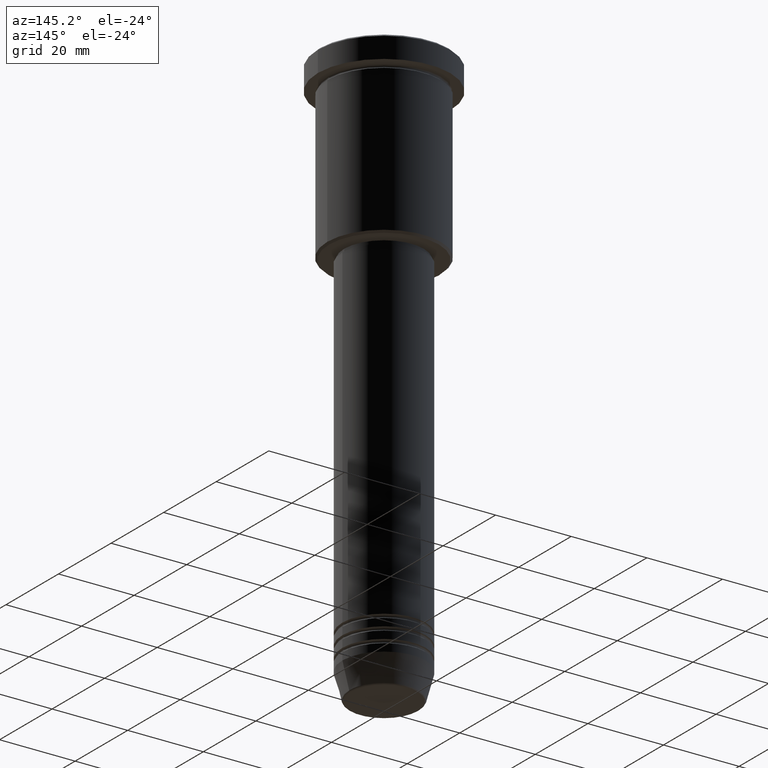
[diagram: clean part render]
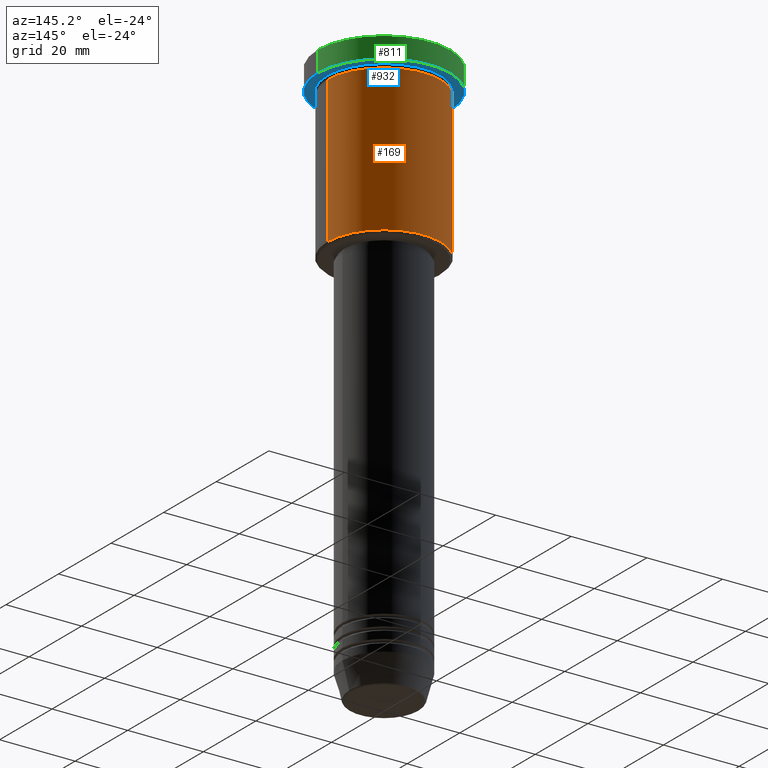
[diagram: same view with three faces highlighted in distinct colors, each labeled with its STEP entity id]
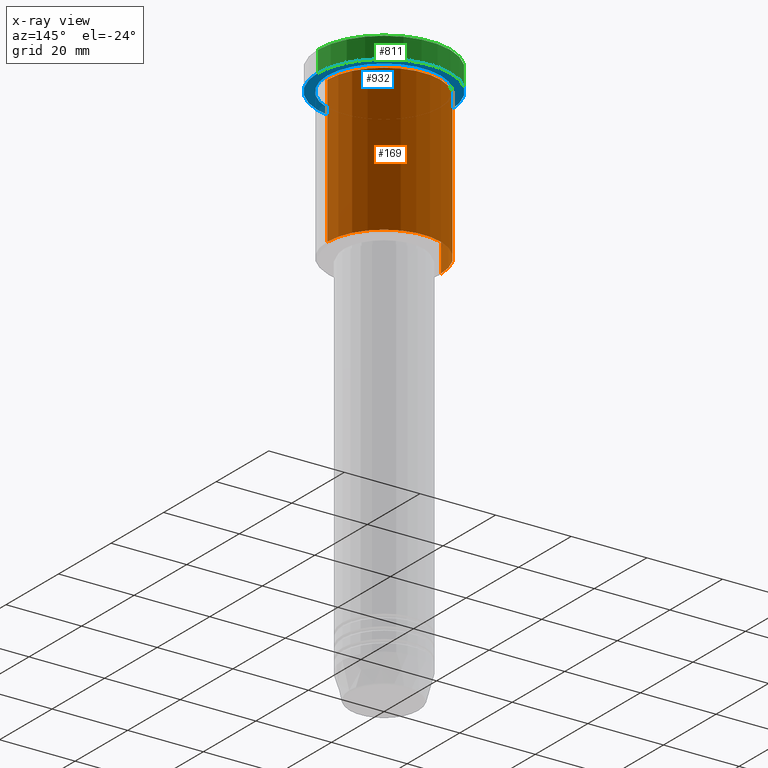
[diagram: x-ray of the same camera — body ghosted, the three highlighted faces saturated]
A machine part, auxiliary view with three faces highlighted in distinct colors.
The next image is the same camera in x-ray (body ghosted, the three faces saturated) — at least one of them is partly hidden behind the body in this view.
Their STEP definitions:

[orange] entity #169 — the highlighted cylindrical surface (partial cylindrical patch) has radius 15 mm, axis along (-0, -0, 1).
#1 = DIRECTION ( 'NONE',  ( 1.000000000000000000, 0.000000000000000000, 0.000000000000000000 ) ) ;
#10 = EDGE_CURVE ( 'NONE', #375, #354, #98, .T. ) ;
#68 = CARTESIAN_POINT ( 'NONE',  ( -15.00000000000000000, 1.836970198721029589E-15, -6.999999999999995559 ) ) ;
#73 = CARTESIAN_POINT ( 'NONE',  ( 15.00000000000000000, 0.000000000000000000, -6.999999999999995559 ) ) ;
#78 = DIRECTION ( 'NONE',  ( -0.000000000000000000, -0.000000000000000000, 1.000000000000000000 ) ) ;
#84 = CIRCLE ( 'NONE', #447, 15.00000000000000000 ) ;
#98 = LINE ( 'NONE', #114, #140 ) ;
#111 = ORIENTED_EDGE ( 'NONE', *, *, #1135, .F. ) ;
#114 = CARTESIAN_POINT ( 'NONE',  ( 15.00000000000000000, 0.000000000000000000, 0.000000000000000000 ) ) ;
#132 = ORIENTED_EDGE ( 'NONE', *, *, #397, .T. ) ;
#140 = VECTOR ( 'NONE', #484, 1000.000000000000000 ) ;
#147 = DIRECTION ( 'NONE',  ( -0.000000000000000000, -0.000000000000000000, 1.000000000000000000 ) ) ;
#169 = ADVANCED_FACE ( 'NONE', ( #378 ), #1075, .T. ) ;
#243 = ORIENTED_EDGE ( 'NONE', *, *, #10, .F. ) ;
#247 = AXIS2_PLACEMENT_3D ( 'NONE', #256, #78, #1 ) ;
#256 = CARTESIAN_POINT ( 'NONE',  ( 0.000000000000000000, 0.000000000000000000, 0.000000000000000000 ) ) ;
#320 = DIRECTION ( 'NONE',  ( -0.000000000000000000, -0.000000000000000000, 1.000000000000000000 ) ) ;
#342 = ORIENTED_EDGE ( 'NONE', *, *, #722, .T. ) ;
#354 = VERTEX_POINT ( 'NONE', #73 ) ;
#375 = VERTEX_POINT ( 'NONE', #398 ) ;
#378 = FACE_OUTER_BOUND ( 'NONE', #1041, .T. ) ;
#397 = EDGE_CURVE ( 'NONE', #1016, #558, #883, .T. ) ;
#398 = CARTESIAN_POINT ( 'NONE',  ( 15.00000000000000000, 0.000000000000000000, -45.49999999999998579 ) ) ;
#417 = CARTESIAN_POINT ( 'NONE',  ( -15.00000000000000000, 1.836970198721029589E-15, 0.000000000000000000 ) ) ;
#447 = AXIS2_PLACEMENT_3D ( 'NONE', #598, #147, #789 ) ;
#452 = DIRECTION ( 'NONE',  ( -1.000000000000000000, 0.000000000000000000, 0.000000000000000000 ) ) ;
#484 = DIRECTION ( 'NONE',  ( -0.000000000000000000, -0.000000000000000000, 1.000000000000000000 ) ) ;
#507 = CARTESIAN_POINT ( 'NONE',  ( -15.00000000000000000, 1.836970198721029589E-15, -45.49999999999998579 ) ) ;
#558 = VERTEX_POINT ( 'NONE', #68 ) ;
#567 = CIRCLE ( 'NONE', #978, 15.00000000000000000 ) ;
#598 = CARTESIAN_POINT ( 'NONE',  ( 0.000000000000000000, 0.000000000000000000, -6.999999999999995559 ) ) ;
#651 = DIRECTION ( 'NONE',  ( -0.000000000000000000, -0.000000000000000000, 1.000000000000000000 ) ) ;
#687 = CARTESIAN_POINT ( 'NONE',  ( 0.000000000000000000, 0.000000000000000000, -45.49999999999998579 ) ) ;
#722 = EDGE_CURVE ( 'NONE', #375, #1016, #567, .T. ) ;
#789 = DIRECTION ( 'NONE',  ( 1.000000000000000000, 0.000000000000000000, 0.000000000000000000 ) ) ;
#883 = LINE ( 'NONE', #417, #933 ) ;
#933 = VECTOR ( 'NONE', #320, 1000.000000000000000 ) ;
#978 = AXIS2_PLACEMENT_3D ( 'NONE', #687, #651, #452 ) ;
#1016 = VERTEX_POINT ( 'NONE', #507 ) ;
#1041 = EDGE_LOOP ( 'NONE', ( #342, #132, #111, #243 ) ) ;
#1075 = CYLINDRICAL_SURFACE ( 'NONE', #247, 15.00000000000000000 ) ;
#1135 = EDGE_CURVE ( 'NONE', #354, #558, #84, .T. ) ;

[blue] entity #932 — the highlighted planar face has unit normal (0, 0, -1).
#87 = EDGE_LOOP ( 'NONE', ( #574, #1058 ) ) ;
#102 = AXIS2_PLACEMENT_3D ( 'NONE', #964, #1046, #610 ) ;
#213 = EDGE_CURVE ( 'NONE', #1152, #482, #641, .T. ) ;
#217 = CARTESIAN_POINT ( 'NONE',  ( 0.000000000000000000, 0.000000000000000000, -5.999999999999995559 ) ) ;
#220 = ORIENTED_EDGE ( 'NONE', *, *, #917, .T. ) ;
#268 = CARTESIAN_POINT ( 'NONE',  ( -17.50000000000000000, 2.143131898507868248E-15, -5.999999999999995559 ) ) ;
#302 = PLANE ( 'NONE',  #877 ) ;
#376 = CARTESIAN_POINT ( 'NONE',  ( 0.000000000000000000, 0.000000000000000000, -5.999999999999995559 ) ) ;
#389 = CARTESIAN_POINT ( 'NONE',  ( 0.000000000000000000, 17.50000000000000000, -5.999999999999995559 ) ) ;
#411 = CIRCLE ( 'NONE', #1133, 17.50000000000000000 ) ;
#443 = CARTESIAN_POINT ( 'NONE',  ( 17.50000000000000000, 0.000000000000000000, -5.999999999999995559 ) ) ;
#471 = DIRECTION ( 'NONE',  ( -0.000000000000000000, -0.000000000000000000, 1.000000000000000000 ) ) ;
#481 = EDGE_CURVE ( 'NONE', #667, #617, #488, .T. ) ;
#482 = VERTEX_POINT ( 'NONE', #1148 ) ;
#488 = CIRCLE ( 'NONE', #102, 17.50000000000000000 ) ;
#545 = AXIS2_PLACEMENT_3D ( 'NONE', #376, #753, #930 ) ;
#552 = CARTESIAN_POINT ( 'NONE',  ( 0.000000000000000000, 0.000000000000000000, -5.999999999999995559 ) ) ;
#574 = ORIENTED_EDGE ( 'NONE', *, *, #671, .F. ) ;
#602 = AXIS2_PLACEMENT_3D ( 'NONE', #217, #672, #763 ) ;
#610 = DIRECTION ( 'NONE',  ( 1.000000000000000000, 0.000000000000000000, 0.000000000000000000 ) ) ;
#617 = VERTEX_POINT ( 'NONE', #443 ) ;
#631 = CARTESIAN_POINT ( 'NONE',  ( 15.00000000000000000, 1.836970198721029589E-15, -5.999999999999994671 ) ) ;
#641 = CIRCLE ( 'NONE', #602, 15.00000000000000000 ) ;
#667 = VERTEX_POINT ( 'NONE', #268 ) ;
#671 = EDGE_CURVE ( 'NONE', #617, #667, #411, .T. ) ;
#672 = DIRECTION ( 'NONE',  ( -0.000000000000000000, -0.000000000000000000, 1.000000000000000000 ) ) ;
#753 = DIRECTION ( 'NONE',  ( -0.000000000000000000, -0.000000000000000000, 1.000000000000000000 ) ) ;
#763 = DIRECTION ( 'NONE',  ( -1.000000000000000000, 0.000000000000000000, 0.000000000000000000 ) ) ;
#771 = FACE_BOUND ( 'NONE', #1174, .T. ) ;
#834 = DIRECTION ( 'NONE',  ( 1.000000000000000000, 0.000000000000000000, 0.000000000000000000 ) ) ;
#858 = FACE_OUTER_BOUND ( 'NONE', #87, .T. ) ;
#877 = AXIS2_PLACEMENT_3D ( 'NONE', #389, #1007, #941 ) ;
#917 = EDGE_CURVE ( 'NONE', #482, #1152, #1115, .T. ) ;
#930 = DIRECTION ( 'NONE',  ( -1.000000000000000000, 0.000000000000000000, 0.000000000000000000 ) ) ;
#932 = ADVANCED_FACE ( 'NONE', ( #771, #858 ), #302, .T. ) ;
#941 = DIRECTION ( 'NONE',  ( -1.000000000000000000, 0.000000000000000000, -0.000000000000000000 ) ) ;
#964 = CARTESIAN_POINT ( 'NONE',  ( 0.000000000000000000, 0.000000000000000000, -5.999999999999995559 ) ) ;
#989 = ORIENTED_EDGE ( 'NONE', *, *, #213, .T. ) ;
#1007 = DIRECTION ( 'NONE',  ( 0.000000000000000000, 0.000000000000000000, -1.000000000000000000 ) ) ;
#1046 = DIRECTION ( 'NONE',  ( -0.000000000000000000, -0.000000000000000000, 1.000000000000000000 ) ) ;
#1058 = ORIENTED_EDGE ( 'NONE', *, *, #481, .F. ) ;
#1115 = CIRCLE ( 'NONE', #545, 15.00000000000000000 ) ;
#1133 = AXIS2_PLACEMENT_3D ( 'NONE', #552, #471, #834 ) ;
#1148 = CARTESIAN_POINT ( 'NONE',  ( -15.00000000000000000, 0.000000000000000000, -5.999999999999994671 ) ) ;
#1152 = VERTEX_POINT ( 'NONE', #631 ) ;
#1174 = EDGE_LOOP ( 'NONE', ( #220, #989 ) ) ;

[green] entity #811 — the highlighted cylindrical surface (partial cylindrical patch) has radius 17.5 mm, axis along (-0, -0, 1).
#50 = VECTOR ( 'NONE', #439, 1000.000000000000000 ) ;
#104 = AXIS2_PLACEMENT_3D ( 'NONE', #705, #1178, #551 ) ;
#106 = EDGE_CURVE ( 'NONE', #617, #184, #281, .T. ) ;
#107 = CARTESIAN_POINT ( 'NONE',  ( 17.50000000000000000, 0.000000000000000000, 0.000000000000000000 ) ) ;
#184 = VERTEX_POINT ( 'NONE', #915 ) ;
#254 = LINE ( 'NONE', #450, #50 ) ;
#268 = CARTESIAN_POINT ( 'NONE',  ( -17.50000000000000000, 2.143131898507868248E-15, -5.999999999999995559 ) ) ;
#281 = LINE ( 'NONE', #107, #409 ) ;
#291 = AXIS2_PLACEMENT_3D ( 'NONE', #363, #704, #462 ) ;
#340 = ORIENTED_EDGE ( 'NONE', *, *, #599, .T. ) ;
#341 = FACE_OUTER_BOUND ( 'NONE', #596, .T. ) ;
#363 = CARTESIAN_POINT ( 'NONE',  ( 0.000000000000000000, 0.000000000000000000, -0.4999999999999866773 ) ) ;
#409 = VECTOR ( 'NONE', #824, 1000.000000000000000 ) ;
#411 = CIRCLE ( 'NONE', #1133, 17.50000000000000000 ) ;
#439 = DIRECTION ( 'NONE',  ( -0.000000000000000000, -0.000000000000000000, 1.000000000000000000 ) ) ;
#443 = CARTESIAN_POINT ( 'NONE',  ( 17.50000000000000000, 0.000000000000000000, -5.999999999999995559 ) ) ;
#450 = CARTESIAN_POINT ( 'NONE',  ( -17.50000000000000000, 2.143131898507868248E-15, 0.000000000000000000 ) ) ;
#462 = DIRECTION ( 'NONE',  ( 1.000000000000000000, 0.000000000000000000, 0.000000000000000000 ) ) ;
#471 = DIRECTION ( 'NONE',  ( -0.000000000000000000, -0.000000000000000000, 1.000000000000000000 ) ) ;
#479 = ORIENTED_EDGE ( 'NONE', *, *, #671, .T. ) ;
#551 = DIRECTION ( 'NONE',  ( 1.000000000000000000, 0.000000000000000000, 0.000000000000000000 ) ) ;
#552 = CARTESIAN_POINT ( 'NONE',  ( 0.000000000000000000, 0.000000000000000000, -5.999999999999995559 ) ) ;
#596 = EDGE_LOOP ( 'NONE', ( #479, #655, #340, #844 ) ) ;
#599 = EDGE_CURVE ( 'NONE', #1037, #184, #1013, .T. ) ;
#617 = VERTEX_POINT ( 'NONE', #443 ) ;
#655 = ORIENTED_EDGE ( 'NONE', *, *, #843, .T. ) ;
#667 = VERTEX_POINT ( 'NONE', #268 ) ;
#671 = EDGE_CURVE ( 'NONE', #617, #667, #411, .T. ) ;
#693 = CARTESIAN_POINT ( 'NONE',  ( -17.50000000000000000, 2.143131898507868248E-15, -0.4999999999999866773 ) ) ;
#704 = DIRECTION ( 'NONE',  ( 0.000000000000000000, 0.000000000000000000, -1.000000000000000000 ) ) ;
#705 = CARTESIAN_POINT ( 'NONE',  ( 0.000000000000000000, 0.000000000000000000, 0.000000000000000000 ) ) ;
#811 = ADVANCED_FACE ( 'NONE', ( #341 ), #1002, .T. ) ;
#824 = DIRECTION ( 'NONE',  ( -0.000000000000000000, -0.000000000000000000, 1.000000000000000000 ) ) ;
#834 = DIRECTION ( 'NONE',  ( 1.000000000000000000, 0.000000000000000000, 0.000000000000000000 ) ) ;
#843 = EDGE_CURVE ( 'NONE', #667, #1037, #254, .T. ) ;
#844 = ORIENTED_EDGE ( 'NONE', *, *, #106, .F. ) ;
#915 = CARTESIAN_POINT ( 'NONE',  ( 17.50000000000000000, 0.000000000000000000, -0.4999999999999866773 ) ) ;
#1002 = CYLINDRICAL_SURFACE ( 'NONE', #104, 17.50000000000000000 ) ;
#1013 = CIRCLE ( 'NONE', #291, 17.50000000000000000 ) ;
#1037 = VERTEX_POINT ( 'NONE', #693 ) ;
#1133 = AXIS2_PLACEMENT_3D ( 'NONE', #552, #471, #834 ) ;
#1178 = DIRECTION ( 'NONE',  ( -0.000000000000000000, -0.000000000000000000, 1.000000000000000000 ) ) ;